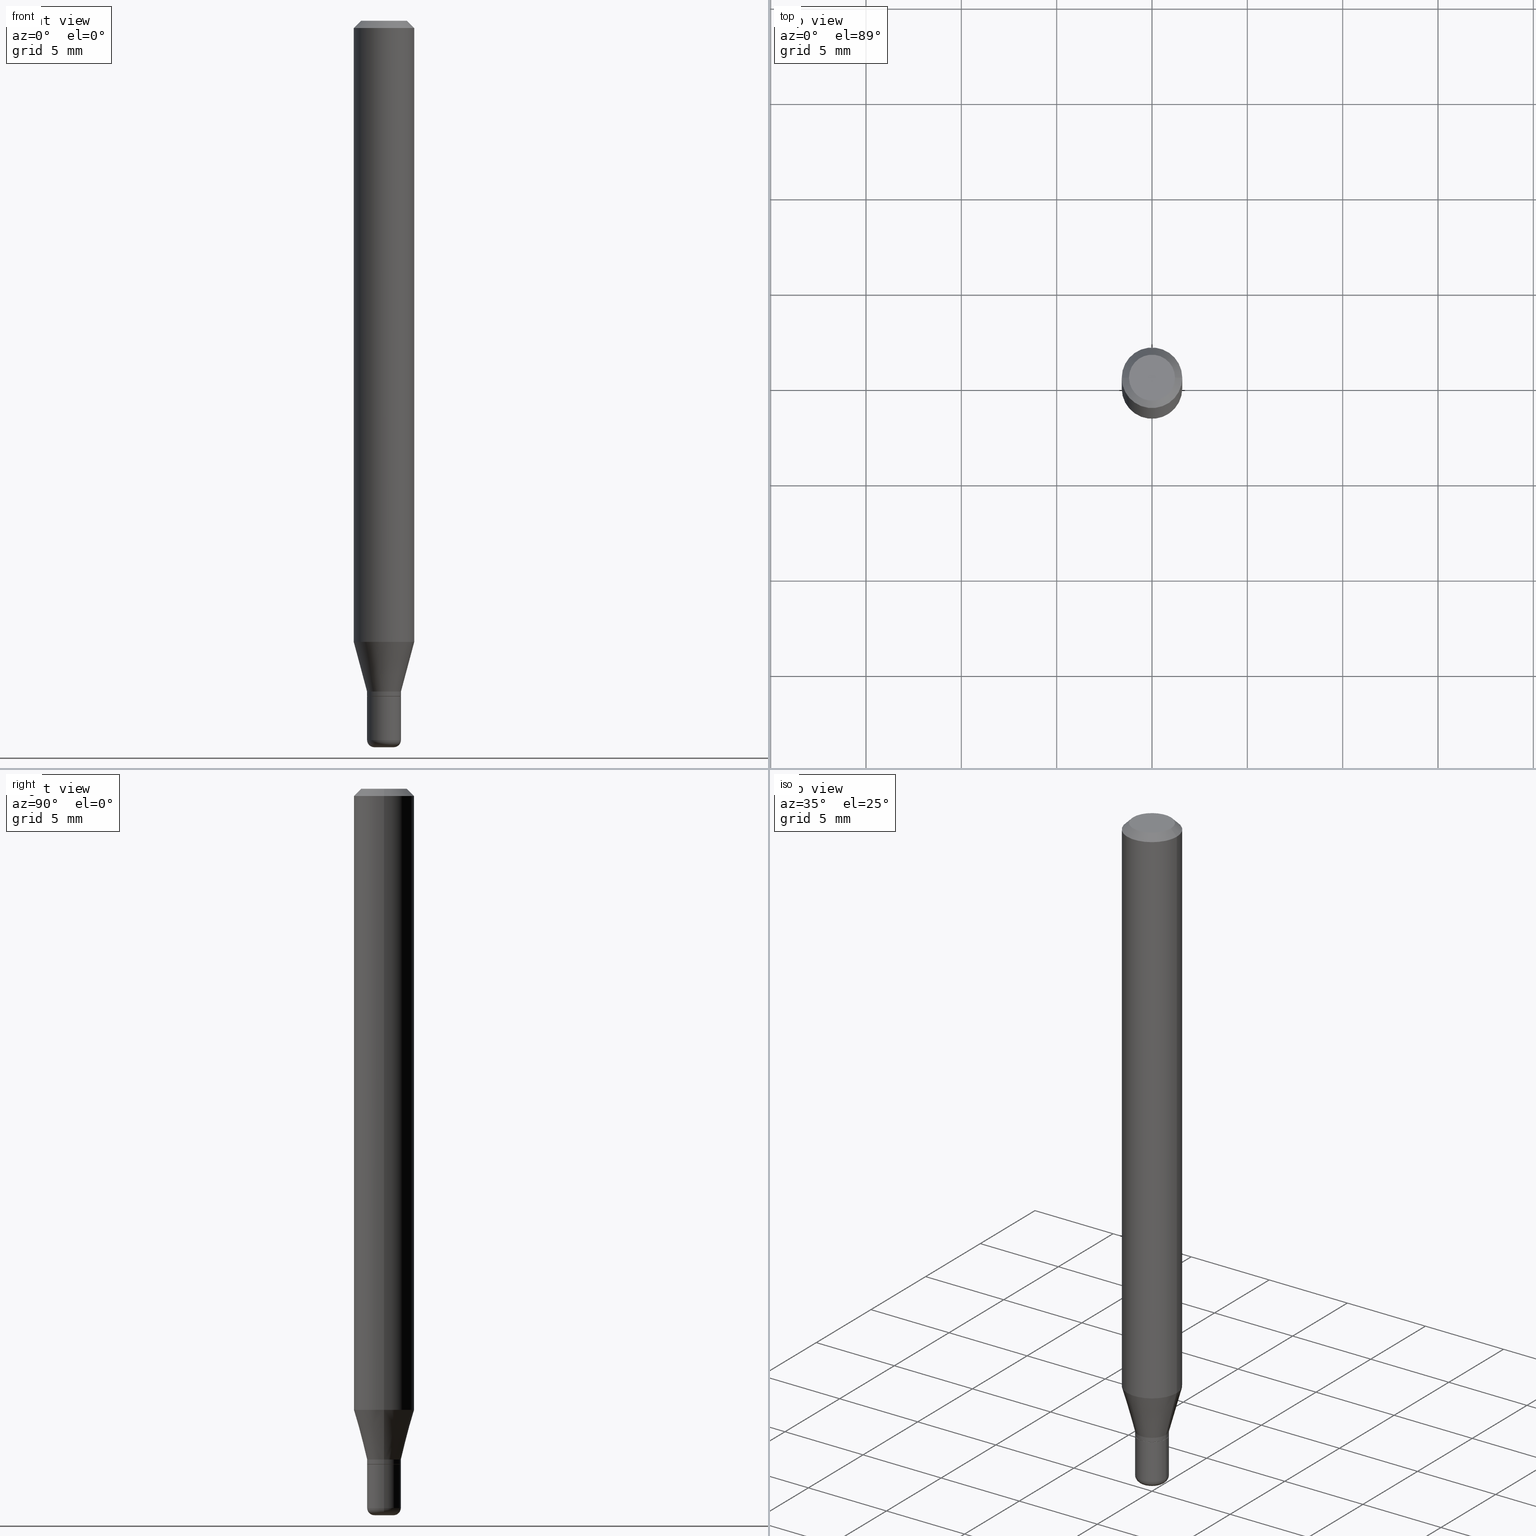
[diagram: canonical four-view strip — front | top / right | iso, engineering-drawing reading convention]
A machine part, canonical four-view strip (front | top / right | iso — engineering-drawing reading convention). The complete STEP part file that produces these views, byte-faithful:
ISO-10303-21;
HEADER;
FILE_DESCRIPTION (( 'STEP AP203' ),
    '1' );
FILE_NAME ('09174.STEP',
    '2024-02-29T22:59:16',
    ( '' ),
    ( '' ),
    'SwSTEP 2.0',
    'SolidWorks 2023',
    '' );
FILE_SCHEMA (( 'CONFIG_CONTROL_DESIGN' ));
ENDSEC;

DATA;
#1 = EDGE_CURVE ( 'NONE', #319, #373, #123, .T. ) ;
#2 = ORIENTED_EDGE ( 'NONE', *, *, #165, .T. ) ;
#3 = CARTESIAN_POINT ( 'NONE',  ( 0.03449999999999998901, -5.111528680066364398E-15, -1.395000000000000018 ) ) ;
#4 = DIRECTION ( 'NONE',  ( -2.445468806185136597E-29, 3.491481338843145583E-15, 1.000000000000000000 ) ) ;
#5 = APPROVAL_STATUS ( 'not_yet_approved' ) ;
#6 = CIRCLE ( 'NONE', #363, 0.06250000000000000000 ) ;
#7 = AXIS2_PLACEMENT_3D ( 'NONE', #229, #231, #317 ) ;
#8 = DIRECTION ( 'NONE',  ( -2.445468806185136597E-29, 3.491481338843145583E-15, 1.000000000000000000 ) ) ;
#9 = DIRECTION ( 'NONE',  ( 1.000000000000000000, -6.982962677686275388E-15, 0.000000000000000000 ) ) ;
#10 = DIRECTION ( 'NONE',  ( 1.000000000000000000, -6.982962677686265922E-15, 4.876176775795935793E-29 ) ) ;
#11 = EDGE_CURVE ( 'NONE', #373, #177, #284, .T. ) ;
#12 = AXIS2_PLACEMENT_3D ( 'NONE', #185, #4, #111 ) ;
#13 = EDGE_LOOP ( 'NONE', ( #191, #415, #220, #396 ) ) ;
#14 = ORIENTED_EDGE ( 'NONE', *, *, #25, .F. ) ;
#15 = EDGE_CURVE ( 'NONE', #511, #121, #208, .T. ) ;
#16 = ADVANCED_BREP_SHAPE_REPRESENTATION ( '09174', ( #518, #357, #371 ), #287 ) ;
#17 = VERTEX_POINT ( 'NONE', #332 ) ;
#18 = DIRECTION ( 'NONE',  ( -2.445468806185136597E-29, 3.491481338843145583E-15, 1.000000000000000000 ) ) ;
#19 = CARTESIAN_POINT ( 'NONE',  ( 0.06250000000000000000, -4.913801213521515384E-15, -1.282368602791856160 ) ) ;
#20 = EDGE_CURVE ( 'NONE', #352, #373, #204, .T. ) ;
#21 = FACE_OUTER_BOUND ( 'NONE', #348, .T. ) ;
#22 = CC_DESIGN_APPROVAL ( #446, ( #489 ) ) ;
#23 = ORIENTED_EDGE ( 'NONE', *, *, #1, .F. ) ;
#24 = DIRECTION ( 'NONE',  ( -2.445468806185136877E-29, 3.491481338843145188E-15, 1.000000000000000000 ) ) ;
#25 = EDGE_CURVE ( 'NONE', #152, #143, #411, .T. ) ;
#26 = FACE_OUTER_BOUND ( 'NONE', #425, .T. ) ;
#27 = VERTEX_POINT ( 'NONE', #128 ) ;
#28 = DIRECTION ( 'NONE',  ( -1.000000000000000000, 6.982962677686266711E-15, 0.000000000000000000 ) ) ;
#29 = CIRCLE ( 'NONE', #385, 0.03500000000000001027 ) ;
#30 = ADVANCED_FACE ( 'NONE', ( #494 ), #218, .T. ) ;
#31 = APPROVAL_DATE_TIME ( #259, #446 ) ;
#32 = PERSON_AND_ORGANIZATION_ROLE ( 'creator' ) ;
#33 = TOROIDAL_SURFACE ( 'NONE', #488, 0.02000000000000000042, 0.01499999999999998904 ) ;
#34 = LOCAL_TIME ( 17, 59, 16.00000000000000000, #67 ) ;
#35 = EDGE_CURVE ( 'NONE', #120, #17, #296, .T. ) ;
#36 = ORIENTED_EDGE ( 'NONE', *, *, #1, .T. ) ;
#37 = ORIENTED_EDGE ( 'NONE', *, *, #45, .T. ) ;
#38 = ORIENTED_EDGE ( 'NONE', *, *, #63, .T. ) ;
#39 = CARTESIAN_POINT ( 'NONE',  ( 3.411428984628265351E-29, -4.870616467686188228E-15, -1.395000000000000018 ) ) ;
#40 = DIRECTION ( 'NONE',  ( -0.7071067811865479058, 2.468850131082261005E-15, -0.7071067811865471286 ) ) ;
#41 = ORIENTED_EDGE ( 'NONE', *, *, #20, .T. ) ;
#42 = AXIS2_PLACEMENT_3D ( 'NONE', #74, #219, #273 ) ;
#43 = AXIS2_PLACEMENT_3D ( 'NONE', #337, #295, #381 ) ;
#44 = APPROVAL ( #5, 'UNSPECIFIED' ) ;
#45 = EDGE_CURVE ( 'NONE', #352, #121, #236, .T. ) ;
#46 = ORIENTED_EDGE ( 'NONE', *, *, #63, .F. ) ;
#47 = DIRECTION ( 'NONE',  ( 1.000000000000000000, -6.982962677686262766E-15, 0.000000000000000000 ) ) ;
#48 = DIRECTION ( 'NONE',  ( 1.000000000000000000, -6.982962677686276966E-15, 0.000000000000000000 ) ) ;
#49 = EDGE_LOOP ( 'NONE', ( #23, #106, #2, #158 ) ) ;
#50 = AXIS2_PLACEMENT_3D ( 'NONE', #164, #299, #69 ) ;
#51 = CARTESIAN_POINT ( 'NONE',  ( 3.411428984628265351E-29, -4.870616467686188228E-15, -1.395000000000000018 ) ) ;
#52 = ADVANCED_FACE ( 'NONE', ( #465 ), #206, .T. ) ;
#53 = VERTEX_POINT ( 'NONE', #387 ) ;
#54 = DIRECTION ( 'NONE',  ( -2.445468806185136597E-29, 3.491481338843145583E-15, 1.000000000000000000 ) ) ;
#55 = AXIS2_PLACEMENT_3D ( 'NONE', #90, #281, #448 ) ;
#56 = CIRCLE ( 'NONE', #278, 0.03499999999999998945 ) ;
#57 = CC_DESIGN_APPROVAL ( #355, ( #412 ) ) ;
#58 = EDGE_CURVE ( 'NONE', #491, #120, #200, .T. ) ;
#59 = DIRECTION ( 'NONE',  ( -0.7071067811866199593, 7.493145998870616062E-15, 0.7071067811864750752 ) ) ;
#60 = ORIENTED_EDGE ( 'NONE', *, *, #135, .T. ) ;
#61 = CARTESIAN_POINT ( 'NONE',  ( 3.386974296566414366E-29, -4.835701654297756579E-15, -1.385000000000000009 ) ) ;
#62 = CARTESIAN_POINT ( 'NONE',  ( 3.631521177184928138E-29, -5.184849788182071492E-15, -1.485000000000000098 ) ) ;
#63 = EDGE_CURVE ( 'NONE', #456, #17, #451, .T. ) ;
#64 = AXIS2_PLACEMENT_3D ( 'NONE', #243, #144, #176 ) ;
#65 = PERSON_AND_ORGANIZATION ( #252, #84 ) ;
#66 = CARTESIAN_POINT ( 'NONE',  ( 0.06250000000000000000, -4.888073874380378612E-16, -0.01499999999999970281 ) ) ;
#67 = COORDINATED_UNIVERSAL_TIME_OFFSET ( 5, 0, .BEHIND. ) ;
#68 = DIRECTION ( 'NONE',  ( 1.000000000000000000, -6.982962677686273021E-15, 0.000000000000000000 ) ) ;
#69 = DIRECTION ( 'NONE',  ( -1.000000000000000000, 6.982962677686265922E-15, -4.876176775795935793E-29 ) ) ;
#70 = VERTEX_POINT ( 'NONE', #3 ) ;
#71 = ORIENTED_EDGE ( 'NONE', *, *, #20, .F. ) ;
#72 = AXIS2_PLACEMENT_3D ( 'NONE', #401, #82, #358 ) ;
#73 = AXIS2_PLACEMENT_3D ( 'NONE', #408, #8, #80 ) ;
#74 = CARTESIAN_POINT ( 'NONE',  ( 0.000000000000000000, 0.000000000000000000, 0.000000000000000000 ) ) ;
#75 = ORIENTED_EDGE ( 'NONE', *, *, #35, .T. ) ;
#76 = CARTESIAN_POINT ( 'NONE',  ( -0.06250000000000000000, 4.440892098500626162E-16, -3.074334431409316114E-30 ) ) ;
#77 = EDGE_LOOP ( 'NONE', ( #330, #476, #369, #375 ) ) ;
#78 = FACE_OUTER_BOUND ( 'NONE', #181, .T. ) ;
#79 = APPROVAL_DATE_TIME ( #439, #44 ) ;
#80 = DIRECTION ( 'NONE',  ( 1.000000000000000000, -6.982962677686282488E-15, 0.000000000000000000 ) ) ;
#81 = EDGE_CURVE ( 'NONE', #27, #456, #142, .T. ) ;
#82 = DIRECTION ( 'NONE',  ( -2.445468806185136597E-29, 3.491481338843145583E-15, 1.000000000000000000 ) ) ;
#83 = AXIS2_PLACEMENT_3D ( 'NONE', #39, #188, #10 ) ;
#84 = ORGANIZATION ( 'UNSPECIFIED', 'UNSPECIFIED', '' ) ;
#85 = ORIENTED_EDGE ( 'NONE', *, *, #35, .F. ) ;
#86 = ADVANCED_FACE ( 'NONE', ( #468 ), #471, .T. ) ;
#87 = ORIENTED_EDGE ( 'NONE', *, *, #135, .F. ) ;
#88 = AXIS2_PLACEMENT_3D ( 'NONE', #212, #136, #68 ) ;
#89 = AXIS2_PLACEMENT_3D ( 'NONE', #329, #291, #378 ) ;
#90 = CARTESIAN_POINT ( 'NONE',  ( 3.582686580359766038E-29, -5.359686688179453325E-15, -1.500000000000000222 ) ) ;
#91 = CARTESIAN_POINT ( 'NONE',  ( 3.668203209277632395E-31, -5.237222008264614861E-17, -0.01499999999999970281 ) ) ;
#92 = FACE_OUTER_BOUND ( 'NONE', #217, .T. ) ;
#93 = CARTESIAN_POINT ( 'NONE',  ( 3.631521177184928138E-29, -5.184849788182071492E-15, -1.485000000000000098 ) ) ;
#94 = ORIENTED_EDGE ( 'NONE', *, *, #345, .F. ) ;
#95 = CARTESIAN_POINT ( 'NONE',  ( -0.03500000000000000333, 2.486899575160350887E-16, -1.721627281589217108E-30 ) ) ;
#96 = CARTESIAN_POINT ( 'NONE',  ( 3.410206250225173110E-29, -4.868870727016767513E-15, -1.394500000000000073 ) ) ;
#97 = ORIENTED_EDGE ( 'NONE', *, *, #45, .F. ) ;
#98 = FACE_OUTER_BOUND ( 'NONE', #186, .T. ) ;
#99 = DIMENSIONAL_EXPONENTS ( 1.000000000000000000, 0.000000000000000000, 0.000000000000000000, 0.000000000000000000, 0.000000000000000000, 0.000000000000000000, 0.000000000000000000 ) ;
#100 = PERSON_AND_ORGANIZATION ( #252, #84 ) ;
#101 = AXIS2_PLACEMENT_3D ( 'NONE', #116, #232, #47 ) ;
#102 = ORIENTED_EDGE ( 'NONE', *, *, #308, .F. ) ;
#103 = PERSON_AND_ORGANIZATION_ROLE ( 'creator' ) ;
#104 = ORIENTED_EDGE ( 'NONE', *, *, #214, .F. ) ;
#105 = EDGE_CURVE ( 'NONE', #17, #456, #325, .T. ) ;
#106 = ORIENTED_EDGE ( 'NONE', *, *, #280, .F. ) ;
#107 = CARTESIAN_POINT ( 'NONE',  ( -0.06250000000000000000, -4.033276836316061099E-15, -1.282368602791856160 ) ) ;
#108 = APPROVAL_PERSON_ORGANIZATION ( #271, #446, #226 ) ;
#109 = PRODUCT_DEFINITION ( 'UNKNOWN', '', #489, #253 ) ;
#110 = PERSON_AND_ORGANIZATION ( #252, #84 ) ;
#111 = DIRECTION ( 'NONE',  ( 1.000000000000000000, -6.982962677686265922E-15, 4.876176775795936353E-29 ) ) ;
#112 = CARTESIAN_POINT ( 'NONE',  ( 3.631521177184928138E-29, -5.184849788182071492E-15, -1.485000000000000098 ) ) ;
#113 = ORIENTED_EDGE ( 'NONE', *, *, #165, .F. ) ;
#114 = AXIS2_PLACEMENT_3D ( 'NONE', #455, #338, #286 ) ;
#115 = ADVANCED_FACE ( 'NONE', ( #222 ), #182, .T. ) ;
#116 = CARTESIAN_POINT ( 'NONE',  ( 3.135992416158702162E-29, -4.477366046166123715E-15, -1.282368602791856160 ) ) ;
#117 = CARTESIAN_POINT ( 'NONE',  ( 3.411428984628265351E-29, -4.870616467686188228E-15, -1.395000000000000018 ) ) ;
#118 = DIRECTION ( 'NONE',  ( 1.000000000000000000, -6.982962677686275388E-15, 0.000000000000000000 ) ) ;
#119 = DIRECTION ( 'NONE',  ( -2.445468806185136597E-29, 3.491481338843145583E-15, 1.000000000000000000 ) ) ;
#120 = VERTEX_POINT ( 'NONE', #318 ) ;
#121 = VERTEX_POINT ( 'NONE', #107 ) ;
#122 = ORIENTED_EDGE ( 'NONE', *, *, #344, .F. ) ;
#123 = LINE ( 'NONE', #334, #404 ) ;
#124 = VECTOR ( 'NONE', #24, 39.37007874015748143 ) ;
#125 = LOCAL_TIME ( 17, 59, 16.00000000000000000, #257 ) ;
#126 = LINE ( 'NONE', #339, #314 ) ;
#127 = DIRECTION ( 'NONE',  ( -2.445468806185136597E-29, 3.491481338843145583E-15, 1.000000000000000000 ) ) ;
#128 = CARTESIAN_POINT ( 'NONE',  ( -0.03499999999999998945, -4.779043170418095363E-15, -1.485000000000000098 ) ) ;
#129 = LINE ( 'NONE', #95, #335 ) ;
#130 = EDGE_LOOP ( 'NONE', ( #261, #493 ) ) ;
#131 = DIRECTION ( 'NONE',  ( 1.000000000000000000, -6.982962677686266711E-15, 0.000000000000000000 ) ) ;
#132 = DIRECTION ( 'NONE',  ( 1.000000000000000000, -6.982962677686266711E-15, 4.876176775795935793E-29 ) ) ;
#133 = CLOSED_SHELL ( 'NONE', ( #187, #249, #505, #285, #115, #168 ) ) ;
#134 = CARTESIAN_POINT ( 'NONE',  ( -0.03449999999999998901, -4.625479223848953840E-15, -1.395000000000000018 ) ) ;
#135 = EDGE_CURVE ( 'NONE', #121, #177, #437, .T. ) ;
#136 = DIRECTION ( 'NONE',  ( -6.982962677686266711E-15, -1.000000000000000000, 3.491481338843145583E-15 ) ) ;
#137 = PERSON_AND_ORGANIZATION ( #252, #84 ) ;
#138 = DIRECTION ( 'NONE',  ( -2.445468806185136597E-29, 3.491481338843145583E-15, 1.000000000000000000 ) ) ;
#139 = AXIS2_PLACEMENT_3D ( 'NONE', #458, #246, #159 ) ;
#140 = CONICAL_SURFACE ( 'NONE', #395, 0.03449999999999998901, 0.7853981633975507526 ) ;
#141 = CC_DESIGN_PERSON_AND_ORGANIZATION_ASSIGNMENT ( #65, #103, ( #489 ) ) ;
#142 = LINE ( 'NONE', #477, #162 ) ;
#143 = VERTEX_POINT ( 'NONE', #368 ) ;
#144 = DIRECTION ( 'NONE',  ( 7.105427357601001859E-15, 1.000000000000000000, -3.491481338843145583E-15 ) ) ;
#145 = ADVANCED_FACE ( 'NONE', ( #228 ), #398, .F. ) ;
#146 = CIRCLE ( 'NONE', #64, 0.01499999999999998904 ) ;
#147 = CALENDAR_DATE ( 2024, 29, 2 ) ;
#148 = CYLINDRICAL_SURFACE ( 'NONE', #42, 0.03499999999999999639 ) ;
#149 = DATE_TIME_ROLE ( 'creation_date' ) ;
#150 = CARTESIAN_POINT ( 'NONE',  ( 3.386974296566414366E-29, -4.835701654297756579E-15, -1.385000000000000009 ) ) ;
#151 = DIRECTION ( 'NONE',  ( -2.445468806185136597E-29, 3.491481338843145583E-15, 1.000000000000000000 ) ) ;
#152 = VERTEX_POINT ( 'NONE', #316 ) ;
#153 = AXIS2_PLACEMENT_3D ( 'NONE', #442, #480, #233 ) ;
#154 = EDGE_CURVE ( 'NONE', #70, #152, #327, .T. ) ;
#155 = DIRECTION ( 'NONE',  ( -2.445468806185136597E-29, 3.491481338843145583E-15, 1.000000000000000000 ) ) ;
#156 = CARTESIAN_POINT ( 'NONE',  ( -0.06250000000000000000, -1.820779923274322189E-15, -0.01499999999999970281 ) ) ;
#157 = ORIENTED_EDGE ( 'NONE', *, *, #11, .F. ) ;
#158 = ORIENTED_EDGE ( 'NONE', *, *, #230, .T. ) ;
#159 = DIRECTION ( 'NONE',  ( 1.000000000000000000, -6.982962677686266711E-15, 0.000000000000000000 ) ) ;
#160 = CARTESIAN_POINT ( 'NONE',  ( 0.000000000000000000, 0.000000000000000000, 0.000000000000000000 ) ) ;
#161 = ORIENTED_EDGE ( 'NONE', *, *, #154, .T. ) ;
#162 = VECTOR ( 'NONE', #427, 39.37007874015748143 ) ;
#163 = CIRCLE ( 'NONE', #89, 0.03499999999999998945 ) ;
#164 = CARTESIAN_POINT ( 'NONE',  ( 3.316907271900976589E-16, 0.04750000000000000749, -2.925296391183627249E-17 ) ) ;
#165 = EDGE_CURVE ( 'NONE', #277, #177, #268, .T. ) ;
#166 = DIRECTION ( 'NONE',  ( -2.445468806185136597E-29, 3.491481338843145583E-15, 1.000000000000000000 ) ) ;
#167 = DIRECTION ( 'NONE',  ( 1.000000000000000000, -6.982962677686278543E-15, 0.000000000000000000 ) ) ;
#168 = ADVANCED_FACE ( 'NONE', ( #366 ), #292, .F. ) ;
#169 = CARTESIAN_POINT ( 'NONE',  ( 3.386974296566414366E-29, -4.835701654297756579E-15, -1.385000000000000009 ) ) ;
#170 = EDGE_CURVE ( 'NONE', #319, #277, #423, .T. ) ;
#171 = LOCAL_TIME ( 17, 59, 16.00000000000000000, #175 ) ;
#172 = CYLINDRICAL_SURFACE ( 'NONE', #12, 0.03499999999999999639 ) ;
#173 = DIRECTION ( 'NONE',  ( -2.445468806185136597E-29, 3.491481338843145583E-15, 1.000000000000000000 ) ) ;
#174 =( NAMED_UNIT ( * ) PLANE_ANGLE_UNIT ( ) SI_UNIT ( $, .RADIAN. ) );
#175 = COORDINATED_UNIVERSAL_TIME_OFFSET ( 5, 0, .BEHIND. ) ;
#176 = DIRECTION ( 'NONE',  ( -1.000000000000000000, 7.105427357600996337E-15, 0.000000000000000000 ) ) ;
#177 = VERTEX_POINT ( 'NONE', #156 ) ;
#178 = CALENDAR_DATE ( 2024, 29, 2 ) ;
#179 = APPROVAL_DATE_TIME ( #399, #355 ) ;
#180 = CLOSED_SHELL ( 'NONE', ( #52, #367, #461, #86, #438, #440, #356, #30, #474, #145, #428, #265 ) ) ;
#181 = EDGE_LOOP ( 'NONE', ( #360, #38 ) ) ;
#182 = TOROIDAL_SURFACE ( 'NONE', #384, 0.02000000000000000042, 0.01499999999999998904 ) ;
#183 = CARTESIAN_POINT ( 'NONE',  ( 3.411428984628265351E-29, -4.870616467686188228E-15, -1.395000000000000018 ) ) ;
#184 = DATE_AND_TIME ( #147, #171 ) ;
#185 = CARTESIAN_POINT ( 'NONE',  ( 0.000000000000000000, 0.000000000000000000, 0.000000000000000000 ) ) ;
#186 = EDGE_LOOP ( 'NONE', ( #479, #224, #201, #416 ) ) ;
#187 = ADVANCED_FACE ( 'NONE', ( #457 ), #33, .T. ) ;
#188 = DIRECTION ( 'NONE',  ( -2.438088387897960049E-29, 3.491481338843145188E-15, 1.000000000000000000 ) ) ;
#189 = DIRECTION ( 'NONE',  ( -2.445468806185136597E-29, 3.491481338843145583E-15, 1.000000000000000000 ) ) ;
#190 = EDGE_CURVE ( 'NONE', #391, #70, #247, .T. ) ;
#191 = ORIENTED_EDGE ( 'NONE', *, *, #25, .T. ) ;
#192 = AXIS2_PLACEMENT_3D ( 'NONE', #403, #194, #9 ) ;
#193 = DIRECTION ( 'NONE',  ( -2.445468806185136597E-29, 3.491481338843145583E-15, 1.000000000000000000 ) ) ;
#194 = DIRECTION ( 'NONE',  ( -2.445468806185136597E-29, 3.491481338843145583E-15, 1.000000000000000000 ) ) ;
#195 = DIRECTION ( 'NONE',  ( -2.445468806185136597E-29, 3.491481338843145583E-15, 1.000000000000000000 ) ) ;
#196 = CC_DESIGN_PERSON_AND_ORGANIZATION_ASSIGNMENT ( #310, #478, ( #412 ) ) ;
#197 = DIRECTION ( 'NONE',  ( -2.445468806185136877E-29, 3.491481338843145188E-15, 1.000000000000000000 ) ) ;
#198 = EDGE_CURVE ( 'NONE', #53, #352, #407, .T. ) ;
#199 = EDGE_LOOP ( 'NONE', ( #502, #430 ) ) ;
#200 = CIRCLE ( 'NONE', #88, 0.01499999999999998904 ) ;
#201 = ORIENTED_EDGE ( 'NONE', *, *, #198, .T. ) ;
#202 = FACE_OUTER_BOUND ( 'NONE', #517, .T. ) ;
#203 = DIRECTION ( 'NONE',  ( -2.445468806185136597E-29, 3.491481338843145583E-15, 1.000000000000000000 ) ) ;
#204 = LINE ( 'NONE', #498, #124 ) ;
#205 = ORIENTED_EDGE ( 'NONE', *, *, #198, .F. ) ;
#206 = CYLINDRICAL_SURFACE ( 'NONE', #304, 0.03500000000000000333 ) ;
#207 = AXIS2_PLACEMENT_3D ( 'NONE', #91, #241, #28 ) ;
#208 = LINE ( 'NONE', #426, #513 ) ;
#209 = ORIENTED_EDGE ( 'NONE', *, *, #345, .T. ) ;
#210 = DIRECTION ( 'NONE',  ( -2.445468806185136877E-29, 3.491481338843145188E-15, 1.000000000000000000 ) ) ;
#211 = CONICAL_SURFACE ( 'NONE', #207, 0.06250000000000000000, 0.7853981633974488341 ) ;
#212 = CARTESIAN_POINT ( 'NONE',  ( 0.02000000000000000042, -5.324509041735797299E-15, -1.485000000000000098 ) ) ;
#213 = ORIENTED_EDGE ( 'NONE', *, *, #484, .T. ) ;
#214 = EDGE_CURVE ( 'NONE', #376, #27, #146, .T. ) ;
#215 = PERSON_AND_ORGANIZATION ( #252, #84 ) ;
#216 = APPLICATION_CONTEXT ( 'configuration controlled 3d designs of mechanical parts and assemblies' ) ;
#217 = EDGE_LOOP ( 'NONE', ( #449, #492, #14, #388 ) ) ;
#218 = CONICAL_SURFACE ( 'NONE', #114, 0.06250000000000000000, 0.7853981633974488341 ) ;
#219 = DIRECTION ( 'NONE',  ( -2.445468806185136597E-29, 3.491481338843145583E-15, 1.000000000000000000 ) ) ;
#220 = ORIENTED_EDGE ( 'NONE', *, *, #303, .F. ) ;
#221 = APPROVAL_ROLE ( '' ) ;
#222 = FACE_OUTER_BOUND ( 'NONE', #260, .T. ) ;
#223 = CARTESIAN_POINT ( 'NONE',  ( -0.06250000000000000000, 3.840629472727455270E-16, -0.01499999999999970281 ) ) ;
#224 = ORIENTED_EDGE ( 'NONE', *, *, #308, .T. ) ;
#225 = DIRECTION ( 'NONE',  ( -2.445468806185136597E-29, 3.491481338843145583E-15, 1.000000000000000000 ) ) ;
#226 = APPROVAL_ROLE ( '' ) ;
#227 = CARTESIAN_POINT ( 'NONE',  ( 0.03500000000000001027, -5.080105348016776545E-15, -1.385000000000000009 ) ) ;
#228 = FACE_OUTER_BOUND ( 'NONE', #199, .T. ) ;
#229 = CARTESIAN_POINT ( 'NONE',  ( 2.444036937190534432E-16, 0.03499999999999513223, -1.395000000000000018 ) ) ;
#230 = EDGE_CURVE ( 'NONE', #177, #373, #6, .T. ) ;
#231 = DIRECTION ( 'NONE',  ( 2.438088387897960049E-29, -3.491481338843145188E-15, -1.000000000000000000 ) ) ;
#232 = DIRECTION ( 'NONE',  ( -2.445468806185136597E-29, 3.491481338843145583E-15, 1.000000000000000000 ) ) ;
#233 = DIRECTION ( 'NONE',  ( 1.000000000000000000, -6.982962677686266711E-15, 4.876176775795935793E-29 ) ) ;
#234 = EDGE_LOOP ( 'NONE', ( #37, #60, #157, #71 ) ) ;
#235 = CYLINDRICAL_SURFACE ( 'NONE', #445, 0.06250000000000000000 ) ;
#236 = CIRCLE ( 'NONE', #481, 0.06250000000000000000 ) ;
#237 = CIRCLE ( 'NONE', #497, 0.03499999999999999639 ) ;
#238 = CARTESIAN_POINT ( 'NONE',  ( 0.04750000000000000749, -4.035134999187568762E-16, 2.731847993664288856E-16 ) ) ;
#239 = CARTESIAN_POINT ( 'NONE',  ( -6.680649051745406845E-45, 9.538196290434862081E-31, 2.731847993664263218E-16 ) ) ;
#240 = ORIENTED_EDGE ( 'NONE', *, *, #81, .T. ) ;
#241 = DIRECTION ( 'NONE',  ( 2.445468806185136597E-29, -3.491481338843145583E-15, -1.000000000000000000 ) ) ;
#242 = CARTESIAN_POINT ( 'NONE',  ( 0.03499999999999999639, -2.444036937190192757E-16, 1.706661871528577457E-30 ) ) ;
#243 = CARTESIAN_POINT ( 'NONE',  ( -0.02000000000000000042, -5.042741241030051329E-15, -1.485000000000000098 ) ) ;
#244 = ORIENTED_EDGE ( 'NONE', *, *, #11, .T. ) ;
#245 = DIRECTION ( 'NONE',  ( 1.000000000000000000, -6.982962677686279332E-15, 4.883557194083117946E-29 ) ) ;
#246 = DIRECTION ( 'NONE',  ( -2.445468806185136597E-29, 3.491481338843145583E-15, 1.000000000000000000 ) ) ;
#247 = CIRCLE ( 'NONE', #462, 0.03449999999999998901 ) ;
#248 = CC_DESIGN_APPROVAL ( #44, ( #109 ) ) ;
#249 = ADVANCED_FACE ( 'NONE', ( #298 ), #172, .T. ) ;
#250 = ORIENTED_EDGE ( 'NONE', *, *, #422, .F. ) ;
#251 = CARTESIAN_POINT ( 'NONE',  ( 0.000000000000000000, 0.000000000000000000, 0.000000000000000000 ) ) ;
#252 = PERSON ( 'UNSPECIFIED', 'UNSPECIFIED', 'UNSPECIFIED', ('UNSPECIFIED'), ('UNSPECIFIED'), ('UNSPECIFIED') ) ;
#253 = DESIGN_CONTEXT ( 'detailed design', #450, 'design' ) ;
#254 = CIRCLE ( 'NONE', #351, 0.03449999999999998901 ) ;
#255 = CIRCLE ( 'NONE', #43, 0.02000000000000000389 ) ;
#256 = CALENDAR_DATE ( 2024, 29, 2 ) ;
#257 = COORDINATED_UNIVERSAL_TIME_OFFSET ( 5, 0, .BEHIND. ) ;
#258 = DIRECTION ( 'NONE',  ( 1.000000000000000000, -6.982962677686278543E-15, 0.000000000000000000 ) ) ;
#259 = DATE_AND_TIME ( #256, #341 ) ;
#260 = EDGE_LOOP ( 'NONE', ( #104, #282, #501, #94 ) ) ;
#261 = ORIENTED_EDGE ( 'NONE', *, *, #280, .T. ) ;
#262 = AXIS2_PLACEMENT_3D ( 'NONE', #321, #189, #486 ) ;
#263 = CONICAL_SURFACE ( 'NONE', #452, 0.03500000000000001027, 0.2617993877991498519 ) ;
#264 = APPLICATION_PROTOCOL_DEFINITION ( 'international standard', 'config_control_design', 1994, #216 ) ;
#265 = ADVANCED_FACE ( 'NONE', ( #309 ), #267, .T. ) ;
#266 = APPROVAL_STATUS ( 'not_yet_approved' ) ;
#267 = CYLINDRICAL_SURFACE ( 'NONE', #72, 0.03500000000000000333 ) ;
#268 = LINE ( 'NONE', #223, #275 ) ;
#269 = CARTESIAN_POINT ( 'NONE',  ( 0.02000000000000000389, -5.376881261818443984E-15, -1.500000000000000222 ) ) ;
#270 = CARTESIAN_POINT ( 'NONE',  ( -0.04750000000000000749, 3.578768372314221353E-16, 2.731847993664239060E-16 ) ) ;
#271 = PERSON_AND_ORGANIZATION ( #252, #84 ) ;
#272 = CC_DESIGN_PERSON_AND_ORGANIZATION_ASSIGNMENT ( #137, #32, ( #109 ) ) ;
#273 = DIRECTION ( 'NONE',  ( 1.000000000000000000, -6.982962677686265922E-15, 4.876176775795936353E-29 ) ) ;
#274 = APPROVAL_STATUS ( 'not_yet_approved' ) ;
#275 = VECTOR ( 'NONE', #40, 39.37007874015748143 ) ;
#276 = DIRECTION ( 'NONE',  ( -2.445468806185136597E-29, 3.491481338843145583E-15, 1.000000000000000000 ) ) ;
#277 = VERTEX_POINT ( 'NONE', #270 ) ;
#278 = AXIS2_PLACEMENT_3D ( 'NONE', #62, #496, #370 ) ;
#279 = PLANE ( 'NONE',  #7 ) ;
#280 = EDGE_CURVE ( 'NONE', #277, #319, #506, .T. ) ;
#281 = DIRECTION ( 'NONE',  ( -2.438088387897960049E-29, 3.491481338843145188E-15, 1.000000000000000000 ) ) ;
#282 = ORIENTED_EDGE ( 'NONE', *, *, #509, .T. ) ;
#283 = ORIENTED_EDGE ( 'NONE', *, *, #434, .F. ) ;
#284 = CIRCLE ( 'NONE', #139, 0.06250000000000000000 ) ;
#285 = ADVANCED_FACE ( 'NONE', ( #397 ), #148, .T. ) ;
#286 = DIRECTION ( 'NONE',  ( -1.000000000000000000, 6.982962677686266711E-15, 0.000000000000000000 ) ) ;
#287 =( GEOMETRIC_REPRESENTATION_CONTEXT ( 3 ) GLOBAL_UNCERTAINTY_ASSIGNED_CONTEXT ( ( #469 ) ) GLOBAL_UNIT_ASSIGNED_CONTEXT ( ( #315, #174, #512 ) ) REPRESENTATION_CONTEXT ( 'NONE', 'WORKASPACE' ) );
#288 = DIRECTION ( 'NONE',  ( 1.000000000000000000, -6.982962677686275388E-15, 0.000000000000000000 ) ) ;
#289 = DIRECTION ( 'NONE',  ( -0.2588190451025211281, 5.211531920934547886E-15, 0.9659258262890679791 ) ) ;
#290 = ORIENTED_EDGE ( 'NONE', *, *, #386, .T. ) ;
#291 = DIRECTION ( 'NONE',  ( -2.445468806185136597E-29, 3.491481338843145583E-15, 1.000000000000000000 ) ) ;
#292 = PLANE ( 'NONE',  #55 ) ;
#293 = DIRECTION ( 'NONE',  ( 0.7071067811865479058, -7.319954787623257623E-15, -0.7071067811865471286 ) ) ;
#294 = EDGE_CURVE ( 'NONE', #70, #391, #254, .T. ) ;
#295 = DIRECTION ( 'NONE',  ( -2.445468806185136597E-29, 3.491481338843145583E-15, 1.000000000000000000 ) ) ;
#296 = LINE ( 'NONE', #242, #435 ) ;
#297 = CIRCLE ( 'NONE', #101, 0.06250000000000000000 ) ;
#298 = FACE_OUTER_BOUND ( 'NONE', #443, .T. ) ;
#299 = DIRECTION ( 'NONE',  ( 2.438088387897960049E-29, -3.491481338843145188E-15, -1.000000000000000000 ) ) ;
#300 = FACE_OUTER_BOUND ( 'NONE', #130, .T. ) ;
#301 = DIRECTION ( 'NONE',  ( 1.000000000000000000, -6.982962677686265133E-15, 0.000000000000000000 ) ) ;
#302 = LENGTH_MEASURE_WITH_UNIT ( LENGTH_MEASURE( 0.02539999999999999897 ), #320 );
#303 = EDGE_CURVE ( 'NONE', #53, #511, #305, .T. ) ;
#304 = AXIS2_PLACEMENT_3D ( 'NONE', #251, #514, #307 ) ;
#305 = CIRCLE ( 'NONE', #192, 0.03500000000000001027 ) ;
#306 = CARTESIAN_POINT ( 'NONE',  ( 0.000000000000000000, 0.000000000000000000, 0.000000000000000000 ) ) ;
#307 = DIRECTION ( 'NONE',  ( 1.000000000000000000, -6.982962677686265922E-15, 4.876176775795936353E-29 ) ) ;
#308 = EDGE_CURVE ( 'NONE', #511, #53, #29, .T. ) ;
#309 = FACE_OUTER_BOUND ( 'NONE', #342, .T. ) ;
#310 = PERSON_AND_ORGANIZATION ( #252, #84 ) ;
#311 = DIRECTION ( 'NONE',  ( 1.000000000000000000, 0.000000000000000000, 0.000000000000000000 ) ) ;
#312 = DATE_TIME_ROLE ( 'classification_date' ) ;
#313 = AXIS2_PLACEMENT_3D ( 'NONE', #96, #166, #167 ) ;
#314 = VECTOR ( 'NONE', #210, 39.37007874015748143 ) ;
#315 =( CONVERSION_BASED_UNIT ( 'INCH', #302 ) LENGTH_UNIT ( ) NAMED_UNIT ( #99 ) );
#316 = CARTESIAN_POINT ( 'NONE',  ( 0.03499999999999999639, -5.113274420735786690E-15, -1.394500000000000073 ) ) ;
#317 = DIRECTION ( 'NONE',  ( -1.000000000000000000, 6.982962677686265922E-15, -4.876176775795935793E-29 ) ) ;
#318 = CARTESIAN_POINT ( 'NONE',  ( 0.03499999999999998945, -5.429253481901091458E-15, -1.485000000000000098 ) ) ;
#319 = VERTEX_POINT ( 'NONE', #238 ) ;
#320 =( LENGTH_UNIT ( ) NAMED_UNIT ( * ) SI_UNIT ( $, .METRE. ) );
#321 = CARTESIAN_POINT ( 'NONE',  ( -6.680649051745406845E-45, 9.538196290434862081E-31, 2.731847993664263218E-16 ) ) ;
#322 = CARTESIAN_POINT ( 'NONE',  ( -0.02000000000000000389, -5.015636645889366715E-15, -1.500000000000000222 ) ) ;
#323 = COORDINATED_UNIVERSAL_TIME_OFFSET ( 5, 0, .BEHIND. ) ;
#324 = ORIENTED_EDGE ( 'NONE', *, *, #105, .F. ) ;
#325 = CIRCLE ( 'NONE', #473, 0.03500000000000000333 ) ;
#326 = LOCAL_TIME ( 17, 59, 16.00000000000000000, #472 ) ;
#327 = LINE ( 'NONE', #485, #516 ) ;
#328 = ORIENTED_EDGE ( 'NONE', *, *, #393, .F. ) ;
#329 = CARTESIAN_POINT ( 'NONE',  ( 3.631521177184928138E-29, -5.184849788182071492E-15, -1.485000000000000098 ) ) ;
#330 = ORIENTED_EDGE ( 'NONE', *, *, #393, .T. ) ;
#331 = ORIENTED_EDGE ( 'NONE', *, *, #303, .T. ) ;
#332 = CARTESIAN_POINT ( 'NONE',  ( 0.03500000000000000333, -5.115020161405208194E-15, -1.395000000000000018 ) ) ;
#333 = VECTOR ( 'NONE', #463, 39.37007874015748854 ) ;
#334 = CARTESIAN_POINT ( 'NONE',  ( 0.06250000000000000000, -4.811533449433669144E-16, -0.01499999999999970281 ) ) ;
#335 = VECTOR ( 'NONE', #377, 39.37007874015748143 ) ;
#336 = ORIENTED_EDGE ( 'NONE', *, *, #190, .T. ) ;
#337 = CARTESIAN_POINT ( 'NONE',  ( 3.668203209277704895E-29, -5.237222008264718177E-15, -1.500000000000000222 ) ) ;
#338 = DIRECTION ( 'NONE',  ( 2.445468806185136597E-29, -3.491481338843145583E-15, -1.000000000000000000 ) ) ;
#339 = CARTESIAN_POINT ( 'NONE',  ( 0.03500000000000000333, -2.444036937190193250E-16, 1.706661871528577808E-30 ) ) ;
#340 = AXIS2_PLACEMENT_3D ( 'NONE', #239, #413, #500 ) ;
#341 = LOCAL_TIME ( 17, 59, 16.00000000000000000, #323 ) ;
#342 = EDGE_LOOP ( 'NONE', ( #283, #467, #290, #102 ) ) ;
#343 = CARTESIAN_POINT ( 'NONE',  ( 3.411428984628265351E-29, -4.870616467686188228E-15, -1.395000000000000018 ) ) ;
#344 = EDGE_CURVE ( 'NONE', #143, #152, #237, .T. ) ;
#345 = EDGE_CURVE ( 'NONE', #27, #120, #56, .T. ) ;
#346 = MECHANICAL_CONTEXT ( 'NONE', #216, 'mechanical' ) ;
#347 = CARTESIAN_POINT ( 'NONE',  ( 3.668203209277632395E-31, -5.237222008264614861E-17, -0.01499999999999970281 ) ) ;
#348 = EDGE_LOOP ( 'NONE', ( #490, #36, #244, #113 ) ) ;
#349 = SHAPE_DEFINITION_REPRESENTATION ( #374, #16 ) ;
#350 = VECTOR ( 'NONE', #59, 39.37007874015748143 ) ;
#351 = AXIS2_PLACEMENT_3D ( 'NONE', #441, #225, #432 ) ;
#352 = VERTEX_POINT ( 'NONE', #19 ) ;
#353 = DIRECTION ( 'NONE',  ( 1.000000000000000000, -6.982962677686276966E-15, 0.000000000000000000 ) ) ;
#354 = SECURITY_CLASSIFICATION_LEVEL ( 'unclassified' ) ;
#355 = APPROVAL ( #266, 'UNSPECIFIED' ) ;
#356 = ADVANCED_FACE ( 'NONE', ( #202 ), #235, .T. ) ;
#357 = MANIFOLD_SOLID_BREP ( 'Body-Move/Copy2[2]', #180 ) ;
#358 = DIRECTION ( 'NONE',  ( 1.000000000000000000, -6.982962677686265922E-15, 4.876176775795936353E-29 ) ) ;
#359 = DIRECTION ( 'NONE',  ( -2.445468806185136597E-29, 3.491481338843145583E-15, 1.000000000000000000 ) ) ;
#360 = ORIENTED_EDGE ( 'NONE', *, *, #105, .T. ) ;
#361 = CALENDAR_DATE ( 2024, 29, 2 ) ;
#362 = CALENDAR_DATE ( 2024, 29, 2 ) ;
#363 = AXIS2_PLACEMENT_3D ( 'NONE', #347, #138, #131 ) ;
#364 = APPROVAL_PERSON_ORGANIZATION ( #100, #44, #221 ) ;
#365 = EDGE_CURVE ( 'NONE', #120, #27, #163, .T. ) ;
#366 = FACE_OUTER_BOUND ( 'NONE', #409, .T. ) ;
#367 = ADVANCED_FACE ( 'NONE', ( #92 ), #140, .T. ) ;
#368 = CARTESIAN_POINT ( 'NONE',  ( -0.03499999999999999639, -4.620180769500732227E-15, -1.394500000000000073 ) ) ;
#369 = ORIENTED_EDGE ( 'NONE', *, *, #365, .F. ) ;
#370 = DIRECTION ( 'NONE',  ( 1.000000000000000000, -6.982962677686280121E-15, 0.000000000000000000 ) ) ;
#371 = AXIS2_PLACEMENT_3D ( 'NONE', #306, #470, #311 ) ;
#372 = EDGE_LOOP ( 'NONE', ( #382, #209, #75, #46 ) ) ;
#373 = VERTEX_POINT ( 'NONE', #66 ) ;
#374 = PRODUCT_DEFINITION_SHAPE ( 'NONE', 'NONE',  #109 ) ;
#375 = ORIENTED_EDGE ( 'NONE', *, *, #58, .F. ) ;
#376 = VERTEX_POINT ( 'NONE', #322 ) ;
#377 = DIRECTION ( 'NONE',  ( -2.445468806185136877E-29, 3.491481338843145188E-15, 1.000000000000000000 ) ) ;
#378 = DIRECTION ( 'NONE',  ( 1.000000000000000000, -6.982962677686280121E-15, 0.000000000000000000 ) ) ;
#379 = ORIENTED_EDGE ( 'NONE', *, *, #365, .T. ) ;
#380 = APPROVAL_PERSON_ORGANIZATION ( #515, #355, #510 ) ;
#381 = DIRECTION ( 'NONE',  ( 1.000000000000000000, -6.982962677686282488E-15, 0.000000000000000000 ) ) ;
#382 = ORIENTED_EDGE ( 'NONE', *, *, #81, .F. ) ;
#383 = DIRECTION ( 'NONE',  ( -2.445468806185136597E-29, 3.491481338843145583E-15, 1.000000000000000000 ) ) ;
#384 = AXIS2_PLACEMENT_3D ( 'NONE', #112, #276, #406 ) ;
#385 = AXIS2_PLACEMENT_3D ( 'NONE', #150, #195, #118 ) ;
#386 = EDGE_CURVE ( 'NONE', #152, #53, #126, .T. ) ;
#387 = CARTESIAN_POINT ( 'NONE',  ( 0.03500000000000001027, -5.080105348016776545E-15, -1.385000000000000009 ) ) ;
#388 = ORIENTED_EDGE ( 'NONE', *, *, #154, .F. ) ;
#389 = PERSON_AND_ORGANIZATION_ROLE ( 'design_supplier' ) ;
#390 = CARTESIAN_POINT ( 'NONE',  ( -0.03449999999999998901, -4.622829996674842639E-15, -1.395000000000000018 ) ) ;
#391 = VERTEX_POINT ( 'NONE', #390 ) ;
#392 = CC_DESIGN_DATE_AND_TIME_ASSIGNMENT ( #184, #312, ( #412 ) ) ;
#393 = EDGE_CURVE ( 'NONE', #491, #376, #255, .T. ) ;
#394 = AXIS2_PLACEMENT_3D ( 'NONE', #183, #359, #353 ) ;
#395 = AXIS2_PLACEMENT_3D ( 'NONE', #421, #155, #301 ) ;
#396 = ORIENTED_EDGE ( 'NONE', *, *, #386, .F. ) ;
#397 = FACE_OUTER_BOUND ( 'NONE', #372, .T. ) ;
#398 = PLANE ( 'NONE',  #83 ) ;
#399 = DATE_AND_TIME ( #362, #326 ) ;
#400 = DIRECTION ( 'NONE',  ( 1.000000000000000000, -6.982962677686265133E-15, 0.000000000000000000 ) ) ;
#401 = CARTESIAN_POINT ( 'NONE',  ( 0.000000000000000000, 0.000000000000000000, 0.000000000000000000 ) ) ;
#402 = CARTESIAN_POINT ( 'NONE',  ( -0.03500000000000001027, -4.310144266548890801E-15, -1.385000000000000009 ) ) ;
#403 = CARTESIAN_POINT ( 'NONE',  ( 3.386974296566414366E-29, -4.835701654297756579E-15, -1.385000000000000009 ) ) ;
#404 = VECTOR ( 'NONE', #293, 39.37007874015748143 ) ;
#405 = CONICAL_SURFACE ( 'NONE', #482, 0.03449999999999998901, 0.7853981633975507526 ) ;
#406 = DIRECTION ( 'NONE',  ( 1.000000000000000000, -6.982962677686279332E-15, 4.883557194083117946E-29 ) ) ;
#407 = LINE ( 'NONE', #227, #333 ) ;
#408 = CARTESIAN_POINT ( 'NONE',  ( 3.668203209277704895E-29, -5.237222008264718177E-15, -1.500000000000000222 ) ) ;
#409 = EDGE_LOOP ( 'NONE', ( #328, #433 ) ) ;
#410 = CARTESIAN_POINT ( 'NONE',  ( 3.410206250225173110E-29, -4.868870727016767513E-15, -1.394500000000000073 ) ) ;
#411 = CIRCLE ( 'NONE', #313, 0.03499999999999999639 ) ;
#412 = SECURITY_CLASSIFICATION ( '', '', #354 ) ;
#413 = DIRECTION ( 'NONE',  ( -2.445468806185136597E-29, 3.491481338843145583E-15, 1.000000000000000000 ) ) ;
#414 = ORIENTED_EDGE ( 'NONE', *, *, #15, .T. ) ;
#415 = ORIENTED_EDGE ( 'NONE', *, *, #434, .T. ) ;
#416 = ORIENTED_EDGE ( 'NONE', *, *, #484, .F. ) ;
#417 = CC_DESIGN_DATE_AND_TIME_ASSIGNMENT ( #431, #149, ( #109 ) ) ;
#418 = PLANE ( 'NONE',  #50 ) ;
#419 = CARTESIAN_POINT ( 'NONE',  ( 3.135992416158702162E-29, -4.477366046166123715E-15, -1.282368602791856160 ) ) ;
#420 = CARTESIAN_POINT ( 'NONE',  ( -0.03500000000000000333, -4.779043170418095363E-15, -1.395000000000000018 ) ) ;
#421 = CARTESIAN_POINT ( 'NONE',  ( 3.411428984628265351E-29, -4.870616467686188228E-15, -1.395000000000000018 ) ) ;
#422 = EDGE_CURVE ( 'NONE', #391, #143, #499, .T. ) ;
#423 = CIRCLE ( 'NONE', #340, 0.04750000000000000749 ) ;
#424 = CIRCLE ( 'NONE', #73, 0.02000000000000000389 ) ;
#425 = EDGE_LOOP ( 'NONE', ( #331, #414, #97, #205 ) ) ;
#426 = CARTESIAN_POINT ( 'NONE',  ( -0.03500000000000001027, -4.587011696781721293E-15, -1.385000000000000009 ) ) ;
#427 = DIRECTION ( 'NONE',  ( -2.445468806185136877E-29, 3.491481338843145188E-15, 1.000000000000000000 ) ) ;
#428 = ADVANCED_FACE ( 'NONE', ( #460 ), #405, .T. ) ;
#429 = APPLICATION_PROTOCOL_DEFINITION ( 'international standard', 'config_control_design', 1994, #450 ) ;
#430 = ORIENTED_EDGE ( 'NONE', *, *, #190, .F. ) ;
#431 = DATE_AND_TIME ( #178, #34 ) ;
#432 = DIRECTION ( 'NONE',  ( 1.000000000000000000, -6.982962677686265133E-15, 0.000000000000000000 ) ) ;
#433 = ORIENTED_EDGE ( 'NONE', *, *, #509, .F. ) ;
#434 = EDGE_CURVE ( 'NONE', #143, #511, #129, .T. ) ;
#435 = VECTOR ( 'NONE', #453, 39.37007874015748143 ) ;
#436 = AXIS2_PLACEMENT_3D ( 'NONE', #169, #127, #466 ) ;
#437 = LINE ( 'NONE', #76, #444 ) ;
#438 = ADVANCED_FACE ( 'NONE', ( #26 ), #507, .T. ) ;
#439 = DATE_AND_TIME ( #361, #125 ) ;
#440 = ADVANCED_FACE ( 'NONE', ( #98 ), #263, .T. ) ;
#441 = CARTESIAN_POINT ( 'NONE',  ( 3.411428984628265351E-29, -4.870616467686188228E-15, -1.395000000000000018 ) ) ;
#442 = CARTESIAN_POINT ( 'NONE',  ( 0.000000000000000000, 0.000000000000000000, 0.000000000000000000 ) ) ;
#443 = EDGE_LOOP ( 'NONE', ( #379, #240, #324, #85 ) ) ;
#444 = VECTOR ( 'NONE', #197, 39.37007874015748143 ) ;
#445 = AXIS2_PLACEMENT_3D ( 'NONE', #160, #119, #132 ) ;
#446 = APPROVAL ( #274, 'UNSPECIFIED' ) ;
#447 = ORIENTED_EDGE ( 'NONE', *, *, #230, .F. ) ;
#448 = DIRECTION ( 'NONE',  ( 1.000000000000000000, -6.982962677686265922E-15, 4.876176775795935793E-29 ) ) ;
#449 = ORIENTED_EDGE ( 'NONE', *, *, #294, .T. ) ;
#450 = APPLICATION_CONTEXT ( 'configuration controlled 3d designs of mechanical parts and assemblies' ) ;
#451 = CIRCLE ( 'NONE', #394, 0.03500000000000000333 ) ;
#452 = AXIS2_PLACEMENT_3D ( 'NONE', #61, #383, #288 ) ;
#453 = DIRECTION ( 'NONE',  ( -2.445468806185136877E-29, 3.491481338843145188E-15, 1.000000000000000000 ) ) ;
#454 = DIRECTION ( 'NONE',  ( 1.000000000000000000, -6.982962677686265133E-15, 0.000000000000000000 ) ) ;
#455 = CARTESIAN_POINT ( 'NONE',  ( 3.668203209277632395E-31, -5.237222008264614861E-17, -0.01499999999999970281 ) ) ;
#456 = VERTEX_POINT ( 'NONE', #420 ) ;
#457 = FACE_OUTER_BOUND ( 'NONE', #77, .T. ) ;
#458 = CARTESIAN_POINT ( 'NONE',  ( 3.668203209277632395E-31, -5.237222008264614861E-17, -0.01499999999999970281 ) ) ;
#459 = CC_DESIGN_PERSON_AND_ORGANIZATION_ASSIGNMENT ( #215, #475, ( #495 ) ) ;
#460 = FACE_OUTER_BOUND ( 'NONE', #508, .T. ) ;
#461 = ADVANCED_FACE ( 'NONE', ( #21 ), #211, .T. ) ;
#462 = AXIS2_PLACEMENT_3D ( 'NONE', #51, #193, #400 ) ;
#463 = DIRECTION ( 'NONE',  ( 0.2588190451025211281, 1.565188264969622954E-15, 0.9659258262890679791 ) ) ;
#464 = CC_DESIGN_SECURITY_CLASSIFICATION ( #412, ( #489 ) ) ;
#465 = FACE_OUTER_BOUND ( 'NONE', #13, .T. ) ;
#466 = DIRECTION ( 'NONE',  ( 1.000000000000000000, -6.982962677686275388E-15, 0.000000000000000000 ) ) ;
#467 = ORIENTED_EDGE ( 'NONE', *, *, #344, .T. ) ;
#468 = FACE_OUTER_BOUND ( 'NONE', #234, .T. ) ;
#469 = UNCERTAINTY_MEASURE_WITH_UNIT (LENGTH_MEASURE( 1.000000000000000082E-05 ), #315, 'distance_accuracy_value', 'NONE');
#470 = DIRECTION ( 'NONE',  ( 0.000000000000000000, 0.000000000000000000, 1.000000000000000000 ) ) ;
#471 = CYLINDRICAL_SURFACE ( 'NONE', #153, 0.06250000000000000000 ) ;
#472 = COORDINATED_UNIVERSAL_TIME_OFFSET ( 5, 0, .BEHIND. ) ;
#473 = AXIS2_PLACEMENT_3D ( 'NONE', #117, #151, #48 ) ;
#474 = ADVANCED_FACE ( 'NONE', ( #300 ), #418, .F. ) ;
#475 = PERSON_AND_ORGANIZATION_ROLE ( 'design_owner' ) ;
#476 = ORIENTED_EDGE ( 'NONE', *, *, #214, .T. ) ;
#477 = CARTESIAN_POINT ( 'NONE',  ( -0.03499999999999999639, 2.486899575160350394E-16, -1.721627281589216757E-30 ) ) ;
#478 = PERSON_AND_ORGANIZATION_ROLE ( 'classification_officer' ) ;
#479 = ORIENTED_EDGE ( 'NONE', *, *, #15, .F. ) ;
#480 = DIRECTION ( 'NONE',  ( -2.445468806185136597E-29, 3.491481338843145583E-15, 1.000000000000000000 ) ) ;
#481 = AXIS2_PLACEMENT_3D ( 'NONE', #419, #54, #503 ) ;
#482 = AXIS2_PLACEMENT_3D ( 'NONE', #343, #173, #454 ) ;
#483 = DIRECTION ( 'NONE',  ( 0.7071067811866199593, -2.468850131083015945E-15, 0.7071067811864750752 ) ) ;
#484 = EDGE_CURVE ( 'NONE', #121, #352, #297, .T. ) ;
#485 = CARTESIAN_POINT ( 'NONE',  ( 0.03449999999999998901, -5.111528680066364398E-15, -1.395000000000000018 ) ) ;
#486 = DIRECTION ( 'NONE',  ( 1.000000000000000000, -6.982962677686266711E-15, 4.852736867747365086E-29 ) ) ;
#487 = CC_DESIGN_PERSON_AND_ORGANIZATION_ASSIGNMENT ( #110, #389, ( #489 ) ) ;
#488 = AXIS2_PLACEMENT_3D ( 'NONE', #93, #203, #245 ) ;
#489 = PRODUCT_DEFINITION_FORMATION_WITH_SPECIFIED_SOURCE ( 'ANY', '', #495, .NOT_KNOWN. ) ;
#490 = ORIENTED_EDGE ( 'NONE', *, *, #170, .F. ) ;
#491 = VERTEX_POINT ( 'NONE', #269 ) ;
#492 = ORIENTED_EDGE ( 'NONE', *, *, #422, .T. ) ;
#493 = ORIENTED_EDGE ( 'NONE', *, *, #170, .T. ) ;
#494 = FACE_OUTER_BOUND ( 'NONE', #49, .T. ) ;
#495 = PRODUCT ( '09174', '09174', '', ( #346 ) ) ;
#496 = DIRECTION ( 'NONE',  ( -2.445468806185136597E-29, 3.491481338843145583E-15, 1.000000000000000000 ) ) ;
#497 = AXIS2_PLACEMENT_3D ( 'NONE', #410, #18, #258 ) ;
#498 = CARTESIAN_POINT ( 'NONE',  ( 0.06250000000000000000, -4.364351673553916694E-16, 3.047610484872459871E-30 ) ) ;
#499 = LINE ( 'NONE', #134, #350 ) ;
#500 = DIRECTION ( 'NONE',  ( 1.000000000000000000, -6.982962677686266711E-15, 4.852736867747365086E-29 ) ) ;
#501 = ORIENTED_EDGE ( 'NONE', *, *, #58, .T. ) ;
#502 = ORIENTED_EDGE ( 'NONE', *, *, #294, .F. ) ;
#503 = DIRECTION ( 'NONE',  ( 1.000000000000000000, -6.982962677686262766E-15, 0.000000000000000000 ) ) ;
#504 = PRODUCT_RELATED_PRODUCT_CATEGORY ( 'detail', '', ( #495 ) ) ;
#505 = ADVANCED_FACE ( 'NONE', ( #78 ), #279, .F. ) ;
#506 = CIRCLE ( 'NONE', #262, 0.04750000000000000749 ) ;
#507 = CONICAL_SURFACE ( 'NONE', #436, 0.03500000000000001027, 0.2617993877991498519 ) ;
#508 = EDGE_LOOP ( 'NONE', ( #250, #336, #161, #122 ) ) ;
#509 = EDGE_CURVE ( 'NONE', #376, #491, #424, .T. ) ;
#510 = APPROVAL_ROLE ( '' ) ;
#511 = VERTEX_POINT ( 'NONE', #402 ) ;
#512 =( NAMED_UNIT ( * ) SI_UNIT ( $, .STERADIAN. ) SOLID_ANGLE_UNIT ( ) );
#513 = VECTOR ( 'NONE', #289, 39.37007874015748854 ) ;
#514 = DIRECTION ( 'NONE',  ( -2.445468806185136597E-29, 3.491481338843145583E-15, 1.000000000000000000 ) ) ;
#515 = PERSON_AND_ORGANIZATION ( #252, #84 ) ;
#516 = VECTOR ( 'NONE', #483, 39.37007874015748143 ) ;
#517 = EDGE_LOOP ( 'NONE', ( #87, #213, #41, #447 ) ) ;
#518 = MANIFOLD_SOLID_BREP ( 'Body-Move/Copy2[1]', #133 ) ;
ENDSEC;
END-ISO-10303-21;
